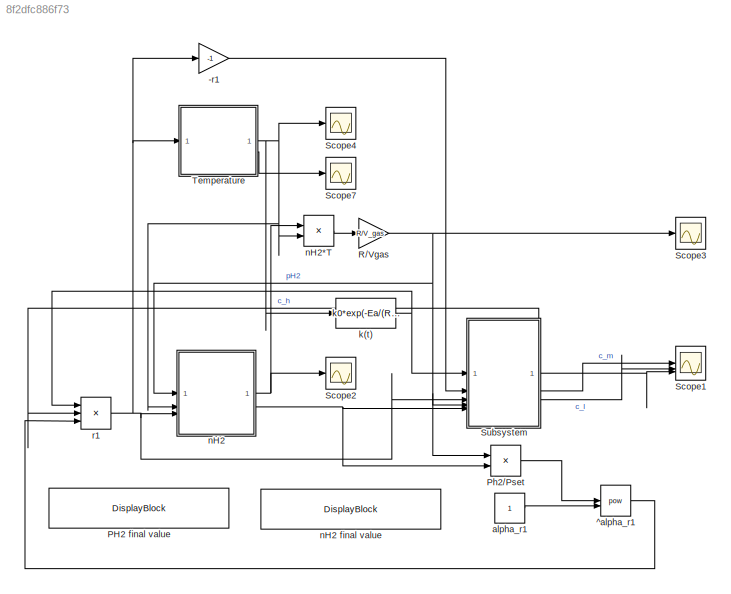
MODEL slx_8f2dfc886f73
KIND model
CONFIG AbsTol = auto
CONFIG EnableMultiTasking = off
CONFIG FixedStep = auto
CONFIG MaxStep = auto
CONFIG MinStep = auto
CONFIG RelTol = 1e-3
CONFIG SampleTimeConstraint = Unconstrained
CONFIG SolverName = VariableStepAuto
CONFIG StartTime = 0.0
CONFIG StopTime = 1000
BLOCK [Gain] -r1
  Gain = -1
BLOCK [DisplayBlock] PH2 final value
  AttributesFormatString = %<Description>
  Description = PH2 final value
  GridColor = [0.502, 0.502, 0.502]
  LabelPosition = Hide
  Transparency = 1
BLOCK [Product] Ph2//Pset
  Inputs = */
BLOCK [Gain] R//Vgas
  Gain = R/V_gas
BLOCK [Scope] Scope1
  ActiveDisplayYMaximum = 1598.0751597626968
  ActiveDisplayYMinimum = -163.95249166903488
  DataLoggingVariableName = ScopeData1
  Floating = off
  GraphicalSettings = {"AxesScalingProperties":{"AlignXAxis":"Center","AlignYAxis":"Center","AutoScaleXAxisLimits":false,"AxesScaling":"Manual","AxesScalingNumUpdates":10,"ExpandOnly":true,"ScaleAxesLimitsAtStop":false,"XAxisDataRange":100,"YAxisDataRange":80},"DisplayProperties":{"ColorOrder":["auto","auto","auto","auto","auto","auto","auto","auto","auto","auto","auto","auto","auto","auto","auto","auto","auto","auto",...<+2180ch>
  MultipleDisplayCache = [{"MaxYLimMag":10,"MaxYLimReal":1598.0751597626968,"MinYLimMag":0,"MinYLimReal":-163.95249166903488,"PlotAsMagnitudePhase":false,"ShowGrid":true,"ShowLegend":true,"Title":"%<SignalLabel>","YLabel":""}]
  NumInputPorts = 3
  ScopeFrameLocation = window
  ShowLegend = on
  WasSavedAsWebScope = on
  WindowPosition = [680.000000,575.000000,560.000000,420.000000,]
BLOCK [Scope] Scope2
  ActiveDisplayYMaximum = 6.0019022834382847
  ActiveDisplayYMinimum = -0.89806097221704873
  DataLoggingVariableName = ScopeData2
  Floating = off
  GraphicalSettings = {"AxesScalingProperties":{"AlignXAxis":"Center","AlignYAxis":"Center","AutoScaleXAxisLimits":false,"AxesScaling":"Manual","AxesScalingNumUpdates":10,"ExpandOnly":true,"ScaleAxesLimitsAtStop":false,"XAxisDataRange":100,"YAxisDataRange":80},"DisplayProperties":{"ColorOrder":["auto","auto","auto","auto","auto","auto","auto","auto","auto","auto","auto","auto","auto","auto","auto","auto","auto","auto",...<+2002ch>
  MultipleDisplayCache = [{"MaxYLimMag":59.690599795351716,"MaxYLimReal":6.0019022834382847,"MinYLimMag":0,"MinYLimReal":-0.89806097221704873,"PlotAsMagnitudePhase":false,"ShowGrid":true,"ShowLegend":true,"Title":"%<SignalLabel>","YLabel":""}]
  NumInputPorts = 1
  ScopeFrameLocation = window
  ShowLegend = on
  WasSavedAsWebScope = on
  WindowPosition = [680.000000,330.000000,560.000000,420.000000,]
BLOCK [Scope] Scope3
  ActiveDisplayYMaximum = 16737.974545965073
  ActiveDisplayYMinimum = -14020.662869162879
  DataLoggingVariableName = ScopeData3
  Floating = off
  GraphicalSettings = {"AxesScalingProperties":{"AlignXAxis":"Center","AlignYAxis":"Center","AutoScaleXAxisLimits":false,"AxesScaling":"Manual","AxesScalingNumUpdates":10,"ExpandOnly":true,"ScaleAxesLimitsAtStop":false,"XAxisDataRange":100,"YAxisDataRange":80},"DisplayProperties":{"ColorOrder":["auto","auto","auto","auto","auto","auto","auto","auto","auto","auto","auto","auto","auto","auto","auto","auto","auto","auto",...<+2002ch>
  MultipleDisplayCache = [{"MaxYLimMag":763979.91092674376,"MaxYLimReal":16737.974545965073,"MinYLimMag":0,"MinYLimReal":-14020.662869162879,"PlotAsMagnitudePhase":false,"ShowGrid":true,"ShowLegend":true,"Title":"%<SignalLabel>","YLabel":""}]
  NumInputPorts = 1
  ScopeFrameLocation = window
  ShowLegend = on
  WasSavedAsWebScope = on
  WindowPosition = [680.000000,330.000000,560.000000,420.000000,]
BLOCK [Scope] Scope4
  ActiveDisplayYMaximum = 662.48239747008381
  ActiveDisplayYMinimum = 580.56684447993848
  DataLoggingVariableName = ScopeData4
  Floating = off
  GraphicalSettings = {"Style":{"BackgroundColor":[0.12941176470588237,0.12941176470588237,0.12941176470588237],"AxesColor":[0.07058823529411765,0.07058823529411765,0.07058823529411765],"LabelsColor":[0.8509803921568627,0.8509803921568627,0.8509803921568627],"PreserveColors":false,"Visible":[true],"LineStyle":["-"],"LineWidth":[1.5],"BarWidth":[0.9],"LineColor":["auto"],"LineFaceAlpha":[1],"LineEdgeAlpha":[1],"Marker":...<+2033ch>
  MultipleDisplayCache = [{"MaxYLimMag":602.30379903268044,"MaxYLimReal":662.48239747008381,"MinYLimMag":579.265808705876,"MinYLimReal":580.56684447993848,"PlotAsMagnitudePhase":false,"ShowGrid":true,"ShowLegend":true,"Title":"%<SignalLabel>","YLabel":""}]
  NumInputPorts = 1
  ScopeFrameLocation = window
  ShowLegend = on
  WasSavedAsWebScope = on
  WindowPosition = [680.000000,330.000000,560.000000,420.000000,]
BLOCK [Scope] Scope7
  ActiveDisplayYMaximum = 544.27149165677986
  ActiveDisplayYMinimum = 520.31544213629388
  DataLoggingVariableName = ScopeData7
  Floating = off
  GraphicalSettings = {"AxesScalingProperties":{"AlignXAxis":"Center","AlignYAxis":"Center","AutoScaleXAxisLimits":false,"AxesScaling":"Manual","AxesScalingNumUpdates":10,"ExpandOnly":true,"ScaleAxesLimitsAtStop":false,"XAxisDataRange":100,"YAxisDataRange":80},"DisplayProperties":{"ColorOrder":["auto","auto","auto","auto","auto","auto","auto","auto","auto","auto","auto","auto","auto","auto","auto","auto","auto","auto",...<+2010ch>
  MultipleDisplayCache = [{"MaxYLimMag":618.75,"MaxYLimReal":544.27149165677986,"MinYLimMag":431.25,"MinYLimReal":520.31544213629388,"PlotAsMagnitudePhase":false,"ShowGrid":true,"ShowLegend":true,"Title":"%<SignalLabel>","YLabel":""}]
  NumInputPorts = 1
  ScopeFrameLocation = window
  ShowLegend = on
  WasSavedAsWebScope = on
  WindowPosition = [680.000000,330.000000,560.000000,420.000000,]
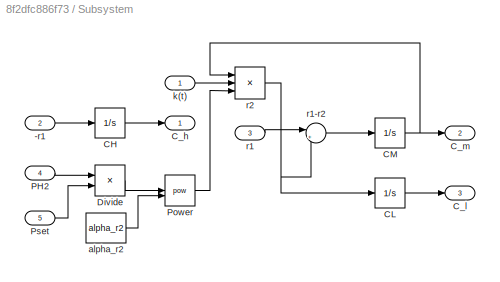
BLOCK [SubSystem] Subsystem
BLOCK [Inport] Subsystem/-r1
  Port = 2
BLOCK [Integrator] Subsystem/CH
  InitialCondition = CH0
BLOCK [Integrator] Subsystem/CL
  InitialCondition = CL0
BLOCK [Integrator] Subsystem/CM
  InitialCondition = CM0
BLOCK [Outport] Subsystem/C_h
BLOCK [Outport] Subsystem/C_l
  Port = 3
BLOCK [Outport] Subsystem/C_m
  Port = 2
BLOCK [Product] Subsystem/Divide
  Inputs = */
BLOCK [Inport] Subsystem/PH2
  Port = 4
BLOCK [Math] Subsystem/Power
  Operator = pow
BLOCK [Inport] Subsystem/Pset
  Port = 5
BLOCK [Constant] Subsystem/alpha_r2
  Value = alpha_r2
BLOCK [Inport] Subsystem/k(t)
BLOCK [Inport] Subsystem/r1
  Port = 3
BLOCK [Sum] Subsystem/r1-r2
  Inputs = |+-
BLOCK [Product] Subsystem/r2
  Inputs = 3
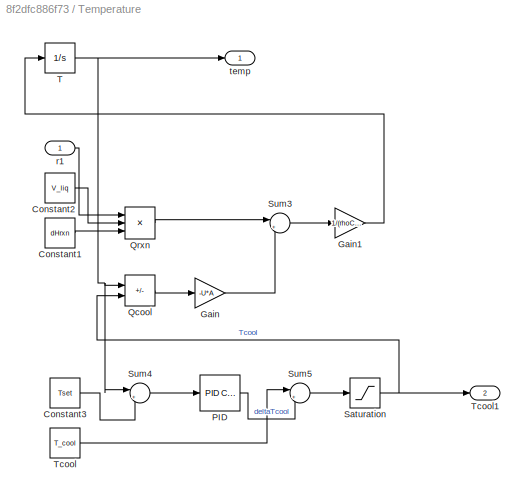
BLOCK [SubSystem] Temperature
BLOCK [Constant] Temperature/Constant1
  Value = dHrxn
BLOCK [Constant] Temperature/Constant2
  Value = V_liq
BLOCK [Constant] Temperature/Constant3
  Value = Tset
BLOCK [Gain] Temperature/Gain
  Gain = -U*A
BLOCK [Gain] Temperature/Gain1
  Gain = 1/(rhoCp*V_liq)
BLOCK [Reference] Temperature/PID  REF=slpidlib/PID Controller
  LibrarySourceBlock = simulink/Continuous/PID Controller
  SourceBlock = slpidlib/PID Controller
  SourceType = PID 1dof
BLOCK [Sum] Temperature/Qcool
  IconShape = rectangular
  Inputs = +-
BLOCK [Product] Temperature/Qrxn
  Inputs = 3
BLOCK [Saturate] Temperature/Saturation
  LowerLimit = 350
  UpperLimit = 600
BLOCK [Sum] Temperature/Sum3
  Inputs = |+-
BLOCK [Sum] Temperature/Sum4
  Inputs = |+-
BLOCK [Sum] Temperature/Sum5
  Inputs = |+-
BLOCK [Integrator] Temperature/T
  InitialCondition = T0
BLOCK [Constant] Temperature/Tcool
  Value = T_cool
BLOCK [Outport] Temperature/Tcool1
  Port = 2
BLOCK [Inport] Temperature/r1
BLOCK [Outport] Temperature/temp
BLOCK [Math] ^alpha_r1
  Operator = pow
BLOCK [Constant] alpha_r1
BLOCK [Fcn] k(t)
  Expr = k0*exp(-Ea/(R*u))
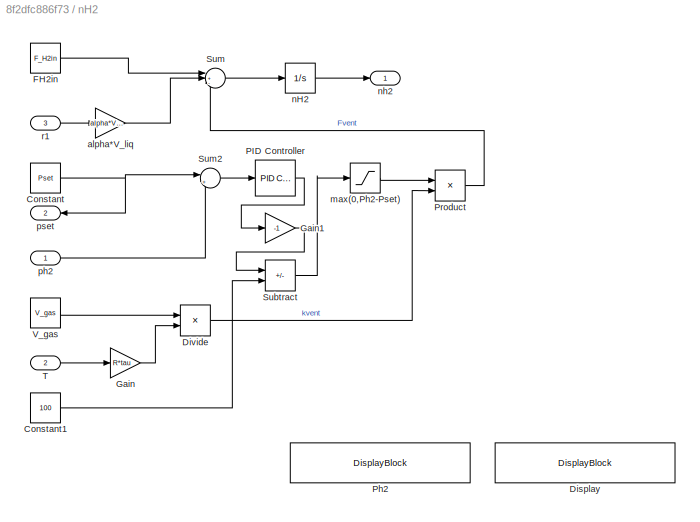
BLOCK [SubSystem] nH2
BLOCK [DisplayBlock] nH2 final value
  GridColor = [0.502, 0.502, 0.502]
  LabelPosition = Hide
  Transparency = 1
BLOCK [Product] nH2*T
BLOCK [Constant] nH2/Constant
  Value = Pset
BLOCK [Constant] nH2/Constant1
  Value = 100
BLOCK [DisplayBlock] nH2/Display
  AttributesFormatString = %<Description>
  Description = Fvent
  GridColor = [0.502, 0.502, 0.502]
  LabelPosition = Hide
  Transparency = 1
BLOCK [Product] nH2/Divide
  Inputs = */
BLOCK [Constant] nH2/FH2in
  Value = F_H2in
BLOCK [Gain] nH2/Gain
  Gain = R*tau
BLOCK [Gain] nH2/Gain1
  Gain = -1
BLOCK [Reference] nH2/PID Controller  REF=slpidlib/PID Controller
  LibrarySourceBlock = simulink/Continuous/PID Controller
  SourceBlock = slpidlib/PID Controller
  SourceType = PID 1dof
BLOCK [DisplayBlock] nH2/Ph2 
  AttributesFormatString = %<Description>
  Description = Ph2
  GridColor = [0.502, 0.502, 0.502]
  LabelPosition = Hide
  Transparency = 1
BLOCK [Product] nH2/Product
BLOCK [Sum] nH2/Subtract
  IconShape = rectangular
  Inputs = +-
BLOCK [Sum] nH2/Sum
  Inputs = |+--
BLOCK [Sum] nH2/Sum2
  Inputs = |+-
BLOCK [Inport] nH2/T
  Port = 2
BLOCK [Constant] nH2/V_gas
  Value = V_gas
BLOCK [Gain] nH2/alpha*V_liq
  Gain = alpha*V_liq
BLOCK [Saturate] nH2/max(0,Ph2-Pset)
  LowerLimit = 0
  UpperLimit = inf
BLOCK [Integrator] nH2/nH2
  InitialCondition = nH2_0
  LimitOutput = on
  LowerSaturationLimit = 0
BLOCK [Outport] nH2/nh2
BLOCK [Inport] nH2/ph2
BLOCK [Outport] nH2/pset
  Port = 2
BLOCK [Inport] nH2/r1
  Port = 3
BLOCK [Product] r1
  Inputs = 3
LINE -r1:1 -> Subsystem:2
LINE Ph2//Pset:1 -> ^alpha_r1:1
NET R//Vgas:1 -> Ph2//Pset:1, Scope3:1, Subsystem:4, nH2:1
LINE Subsystem/-r1:1 -> Subsystem/CH:1
LINE Subsystem/CH:1 -> Subsystem/C_h:1
LINE Subsystem/CL:1 -> Subsystem/C_l:1
NET Subsystem/CM:1 -> Subsystem/C_m:1, Subsystem/r2:1
LINE Subsystem/Divide:1 -> Subsystem/Power:1
LINE Subsystem/PH2:1 -> Subsystem/Divide:1
LINE Subsystem/Power:1 -> Subsystem/r2:3
LINE Subsystem/Pset:1 -> Subsystem/Divide:2
LINE Subsystem/alpha_r2:1 -> Subsystem/Power:2
LINE Subsystem/k(t):1 -> Subsystem/r2:2
LINE Subsystem/r1-r2:1 -> Subsystem/CM:1
LINE Subsystem/r1:1 -> Subsystem/r1-r2:1
NET Subsystem/r2:1 -> Subsystem/CL:1, Subsystem/r1-r2:2
NET Subsystem:1 -> Scope1:3, r1:2
LINE Subsystem:2 -> Scope1:1
LINE Subsystem:3 -> Scope1:2
LINE Temperature/Constant1:1 -> Temperature/Qrxn:3
LINE Temperature/Constant2:1 -> Temperature/Qrxn:2
LINE Temperature/Constant3:1 -> Temperature/Sum4:2
LINE Temperature/Gain1:1 -> Temperature/T:1
LINE Temperature/Gain:1 -> Temperature/Sum3:2
LINE Temperature/PID:1 -> Temperature/Sum5:2
LINE Temperature/Qcool:1 -> Temperature/Gain:1
LINE Temperature/Qrxn:1 -> Temperature/Sum3:1
NET Temperature/Saturation:1 -> Temperature/Qcool:2, Temperature/Tcool1:1
LINE Temperature/Sum3:1 -> Temperature/Gain1:1
LINE Temperature/Sum4:1 -> Temperature/PID:1
LINE Temperature/Sum5:1 -> Temperature/Saturation:1
NET Temperature/T:1 -> Temperature/Qcool:1, Temperature/Sum4:1, Temperature/temp:1
LINE Temperature/Tcool:1 -> Temperature/Sum5:1
LINE Temperature/r1:1 -> Temperature/Qrxn:1
NET Temperature:1 -> Scope4:1, k(t):1, nH2*T:2, nH2:2
LINE Temperature:2 -> Scope7:1
LINE ^alpha_r1:1 -> r1:3
LINE alpha_r1:1 -> ^alpha_r1:2
NET k(t):1 -> Subsystem:1, r1:1
LINE nH2*T:1 -> R//Vgas:1
LINE nH2/Constant1:1 -> nH2/Subtract:2
NET nH2/Constant:1 -> nH2/Sum2:1, nH2/pset:1
LINE nH2/Divide:1 -> nH2/Product:2
LINE nH2/FH2in:1 -> nH2/Sum:1
LINE nH2/Gain1:1 -> nH2/Subtract:1
LINE nH2/Gain:1 -> nH2/Divide:2
LINE nH2/PID Controller:1 -> nH2/Gain1:1
LINE nH2/Product:1 -> nH2/Sum:3
LINE nH2/Subtract:1 -> nH2/max(0,Ph2-Pset):1
LINE nH2/Sum2:1 -> nH2/PID Controller:1
LINE nH2/Sum:1 -> nH2/nH2:1
LINE nH2/T:1 -> nH2/Gain:1
LINE nH2/V_gas:1 -> nH2/Divide:1
LINE nH2/alpha*V_liq:1 -> nH2/Sum:2
LINE nH2/max(0,Ph2-Pset):1 -> nH2/Product:1
LINE nH2/nH2:1 -> nH2/nh2:1
LINE nH2/ph2:1 -> nH2/Sum2:2
LINE nH2/r1:1 -> nH2/alpha*V_liq:1
NET nH2:1 -> Scope2:1, nH2*T:1
NET nH2:2 -> Ph2//Pset:2, Subsystem:5
NET r1:1 -> -r1:1, Subsystem:3, Temperature:1, nH2:3
note: NET lines group one-source signal fan-out (src -> all destinations, sorted); 1:1 wires keep LINE
